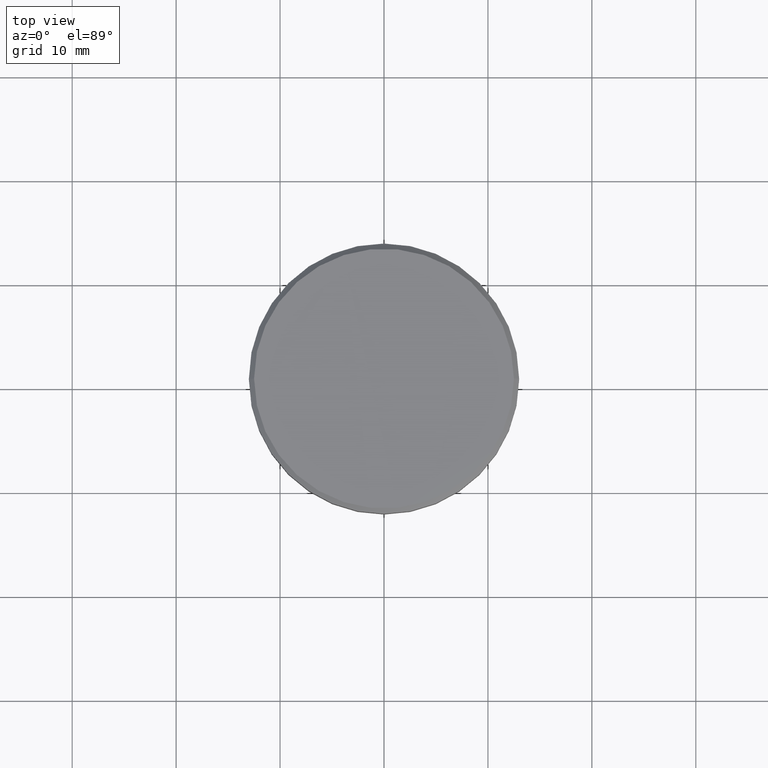
[diagram: clean part render]
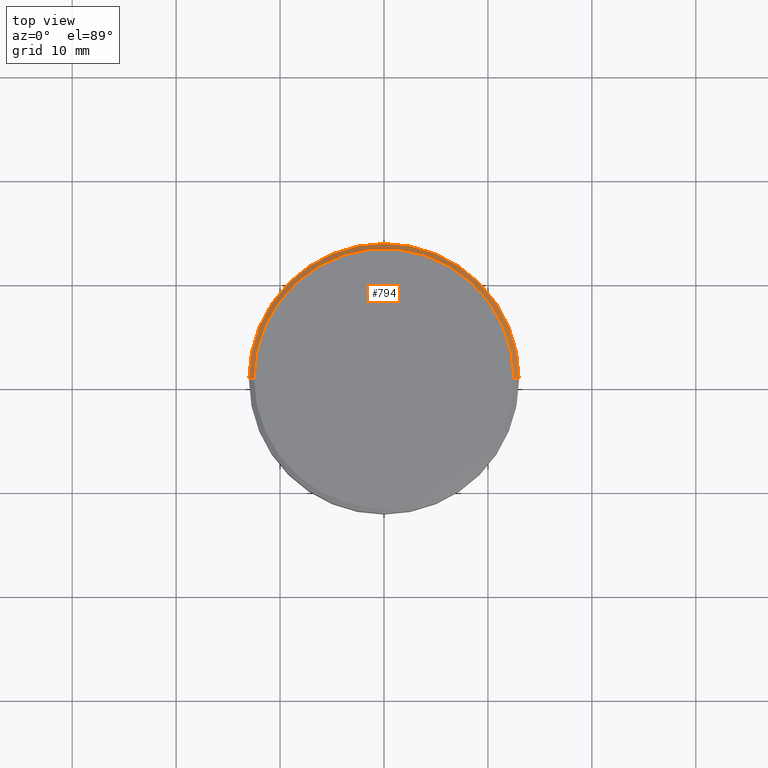
[diagram: same view with one face highlighted and labeled with its STEP entity id]
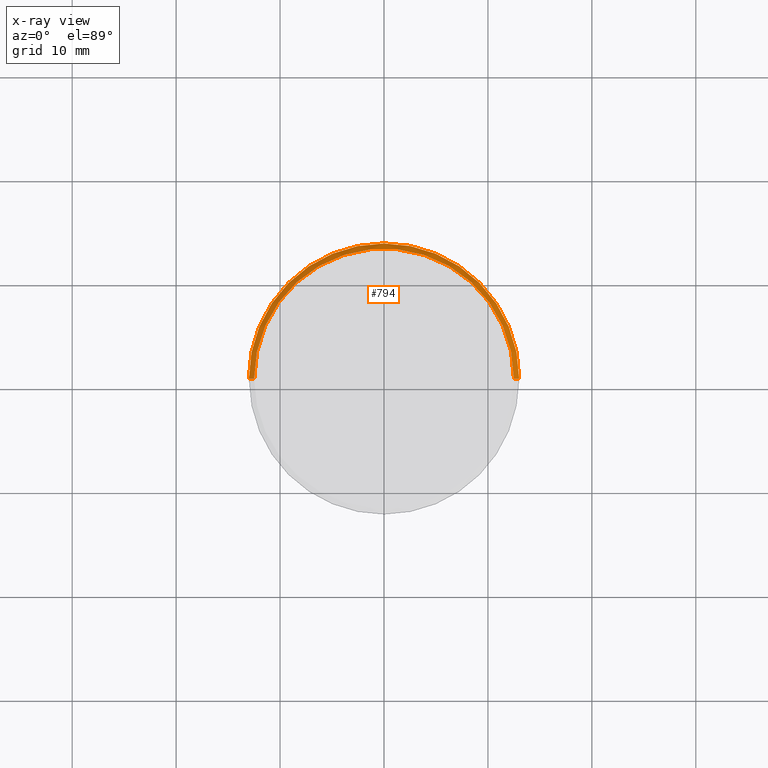
[diagram: x-ray of the same camera — body ghosted, the highlighted face saturated]
A machine part, top view. The second image highlights one B-rep face of the part: STEP entity #794.
The next image is the same camera in x-ray: the body ghosted, the highlighted face saturated — about 0% of this face is hidden behind the body in this view.
In plain terms, the highlighted conical surface has half-angle 45 deg.
Its self-contained STEP definition (entity closure, byte-faithful):
#55 = EDGE_CURVE ( 'NONE', #853, #885, #838, .T. ) ;
#80 = LINE ( 'NONE', #251, #475 ) ;
#112 = CARTESIAN_POINT ( 'NONE',  ( -12.50000000000001776, 0.000000000000000000, 0.000000000000000000 ) ) ;
#152 = DIRECTION ( 'NONE',  ( 1.000000000000000000, 0.000000000000000000, 0.000000000000000000 ) ) ;
#187 = EDGE_LOOP ( 'NONE', ( #231, #444, #995, #535 ) ) ;
#231 = ORIENTED_EDGE ( 'NONE', *, *, #297, .F. ) ;
#243 = CARTESIAN_POINT ( 'NONE',  ( 0.000000000000000000, 0.000000000000000000, 0.000000000000000000 ) ) ;
#251 = CARTESIAN_POINT ( 'NONE',  ( -12.50000000000001776, 0.000000000000000000, 0.000000000000000000 ) ) ;
#273 = DIRECTION ( 'NONE',  ( 0.7071067811865439090, 8.659560562354888485E-17, -0.7071067811865512365 ) ) ;
#297 = EDGE_CURVE ( 'NONE', #853, #818, #623, .T. ) ;
#318 = EDGE_CURVE ( 'NONE', #454, #885, #1097, .T. ) ;
#331 = CARTESIAN_POINT ( 'NONE',  ( 0.000000000000000000, 0.000000000000000000, -0.4999999999999865663 ) ) ;
#379 = EDGE_CURVE ( 'NONE', #818, #454, #80, .T. ) ;
#387 = CARTESIAN_POINT ( 'NONE',  ( 12.50000000000001776, 1.561424668912876492E-15, 0.000000000000000000 ) ) ;
#444 = ORIENTED_EDGE ( 'NONE', *, *, #55, .T. ) ;
#451 = DIRECTION ( 'NONE',  ( 0.000000000000000000, 0.000000000000000000, -1.000000000000000000 ) ) ;
#454 = VERTEX_POINT ( 'NONE', #562 ) ;
#475 = VECTOR ( 'NONE', #602, 999.9999999999998863 ) ;
#512 = CONICAL_SURFACE ( 'NONE', #549, 12.50000000000001776, 0.7853981633974430610 ) ;
#535 = ORIENTED_EDGE ( 'NONE', *, *, #379, .F. ) ;
#549 = AXIS2_PLACEMENT_3D ( 'NONE', #819, #451, #1171 ) ;
#562 = CARTESIAN_POINT ( 'NONE',  ( -13.00000000000000000, 1.592040838891559095E-15, -0.4999999999999865663 ) ) ;
#567 = AXIS2_PLACEMENT_3D ( 'NONE', #331, #890, #1175 ) ;
#602 = DIRECTION ( 'NONE',  ( -0.7071067811865439090, 0.000000000000000000, -0.7071067811865512365 ) ) ;
#623 = CIRCLE ( 'NONE', #1095, 12.50000000000001776 ) ;
#745 = VECTOR ( 'NONE', #273, 999.9999999999998863 ) ;
#794 = ADVANCED_FACE ( 'NONE', ( #802 ), #512, .T. ) ;
#802 = FACE_OUTER_BOUND ( 'NONE', #187, .T. ) ;
#818 = VERTEX_POINT ( 'NONE', #112 ) ;
#819 = CARTESIAN_POINT ( 'NONE',  ( 0.000000000000000000, 0.000000000000000000, 0.000000000000000000 ) ) ;
#838 = LINE ( 'NONE', #927, #745 ) ;
#853 = VERTEX_POINT ( 'NONE', #387 ) ;
#885 = VERTEX_POINT ( 'NONE', #929 ) ;
#890 = DIRECTION ( 'NONE',  ( 0.000000000000000000, 0.000000000000000000, -1.000000000000000000 ) ) ;
#927 = CARTESIAN_POINT ( 'NONE',  ( 12.50000000000001776, 1.530808498934193691E-15, 0.000000000000000000 ) ) ;
#929 = CARTESIAN_POINT ( 'NONE',  ( 13.00000000000000000, 0.000000000000000000, -0.4999999999999865663 ) ) ;
#970 = DIRECTION ( 'NONE',  ( -0.000000000000000000, -0.000000000000000000, 1.000000000000000000 ) ) ;
#995 = ORIENTED_EDGE ( 'NONE', *, *, #318, .F. ) ;
#1095 = AXIS2_PLACEMENT_3D ( 'NONE', #243, #970, #152 ) ;
#1097 = CIRCLE ( 'NONE', #567, 13.00000000000000000 ) ;
#1171 = DIRECTION ( 'NONE',  ( -1.000000000000000000, 0.000000000000000000, 0.000000000000000000 ) ) ;
#1175 = DIRECTION ( 'NONE',  ( 1.000000000000000000, 0.000000000000000000, 0.000000000000000000 ) ) ;